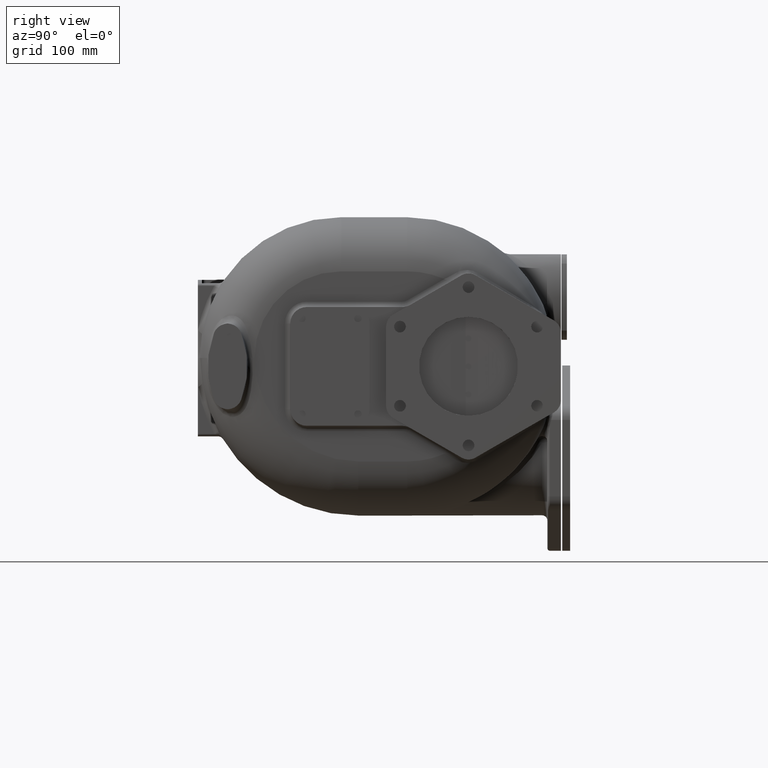
[diagram: clean part render]
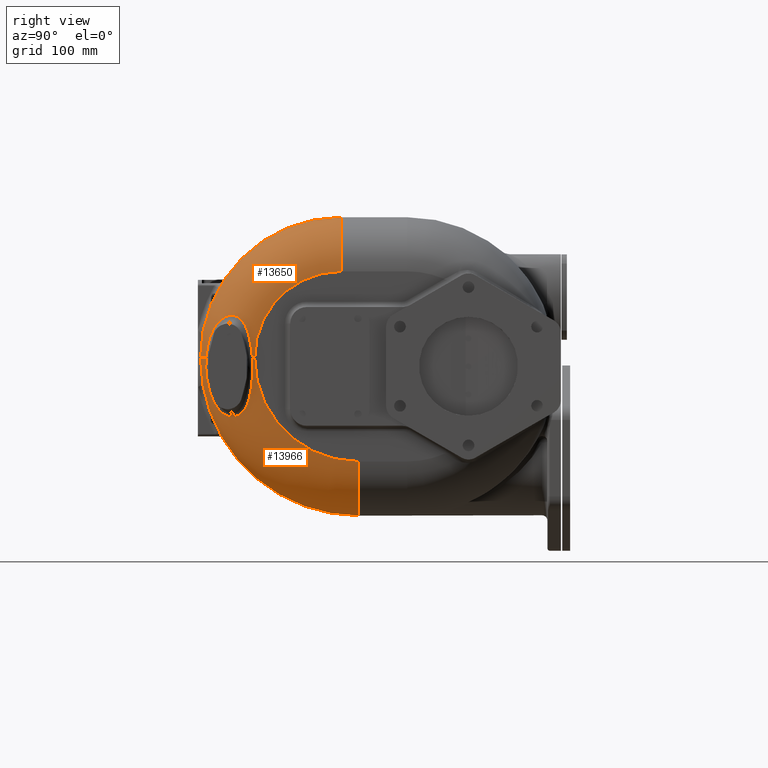
[diagram: same view with one multi-face feature highlighted, each face labeled with its STEP entity id]
A machine part, right view. The highlighted faces form ONE feature: a constant-radius fillet chain: 2 tangent blend faces with common blend radius 82 mm. The faces share edges in the B-rep.
Their STEP definitions:
[1] entity #13650 (Torus):
#963=CARTESIAN_POINT('',(2.34E2,2.17E2,-1.3E1));
#964=DIRECTION('',(1.E0,0.E0,0.E0));
#965=DIRECTION('',(0.E0,0.E0,1.E0));
#966=AXIS2_PLACEMENT_3D('',#963,#964,#965);
#4882=CARTESIAN_POINT('',(2.339353656889E2,8.274487336276E1,-1.3E1));
#4883=CARTESIAN_POINT('',(2.339339644732E2,8.270918535156E1,-1.256129048278E1));
#4884=CARTESIAN_POINT('',(2.339307538358E2,8.263444731143E1,-1.168397406638E1));
#4885=CARTESIAN_POINT('',(2.339248748706E2,8.251323932024E1,-1.036713794622E1));
#4886=CARTESIAN_POINT('',(2.339178202315E2,8.238424142135E1,-9.050543589567E0));
#4887=CARTESIAN_POINT('',(2.339095936351E2,8.224952458407E1,-7.739844715712E0));
#4888=CARTESIAN_POINT('',(2.339000121001E2,8.210820254393E1,-6.417769285520E0));
#4889=CARTESIAN_POINT('',(2.338883148047E2,8.195227867606E1,-5.020393056383E0));
#4890=CARTESIAN_POINT('',(2.338734936988E2,8.177392797552E1,-3.494495743191E0));
#4891=CARTESIAN_POINT('',(2.338538358736E2,8.156191228367E1,-1.775377750045E0));
#4892=CARTESIAN_POINT('',(2.338289329511E2,8.132280882452E1,5.324368321622E-2));
#4893=CARTESIAN_POINT('',(2.337992401276E2,8.106855703263E1,1.887313419874E0));
#4894=CARTESIAN_POINT('',(2.337656302920E2,8.080967314629E1,3.653805296860E0));
#4895=CARTESIAN_POINT('',(2.337275543737E2,8.054340450761E1,5.375866464324E0));
#4896=CARTESIAN_POINT('',(2.336844166229E2,8.026789856882E1,7.066487727343E0));
#4897=CARTESIAN_POINT('',(2.336357899395E2,7.998270951425E1,8.728028116095E0));
#4898=CARTESIAN_POINT('',(2.335815502860E2,7.968902893449E1,1.035333559501E1));
#4899=CARTESIAN_POINT('',(2.335216481662E2,7.938801502104E1,1.193744209344E1));
#4900=CARTESIAN_POINT('',(2.334559376270E2,7.907993084541E1,1.347967238423E1));
#4901=CARTESIAN_POINT('',(2.333843044380E2,7.876507160544E1,1.497973951607E1));
#4902=CARTESIAN_POINT('',(2.333066912429E2,7.844383220158E1,1.643721364817E1));
#4903=CARTESIAN_POINT('',(2.332230771701E2,7.811651043918E1,1.785149341278E1));
#4904=CARTESIAN_POINT('',(2.331335127621E2,7.778360178184E1,1.922202328566E1));
#4905=CARTESIAN_POINT('',(2.330380774816E2,7.744552878494E1,2.054856448182E1));
#4906=CARTESIAN_POINT('',(2.329368645141E2,7.710259193413E1,2.183111608475E1));
#4907=CARTESIAN_POINT('',(2.328300472482E2,7.675533797245E1,2.306963781450E1));
#4908=CARTESIAN_POINT('',(2.327177076246E2,7.640385501058E1,2.426530876193E1));
#4909=CARTESIAN_POINT('',(2.325999193408E2,7.604816075520E1,2.541938724040E1));
#4910=CARTESIAN_POINT('',(2.324767596776E2,7.568833425724E1,2.653342457296E1));
#4911=CARTESIAN_POINT('',(2.323481518404E2,7.532400015638E1,2.761015024374E1));
#4912=CARTESIAN_POINT('',(2.322139510086E2,7.495464611099E1,2.865237911781E1));
#4913=CARTESIAN_POINT('',(2.320740892132E2,7.458006964310E1,2.966207516733E1));
#4914=CARTESIAN_POINT('',(2.319286400776E2,7.420042738371E1,3.063998031404E1));
#4915=CARTESIAN_POINT('',(2.317776356035E2,7.381577752907E1,3.158720374411E1));
#4916=CARTESIAN_POINT('',(2.316211979662E2,7.342641366714E1,3.250432554186E1));
#4917=CARTESIAN_POINT('',(2.314594500652E2,7.303251104768E1,3.339169495827E1));
#4918=CARTESIAN_POINT('',(2.312925490605E2,7.263438612798E1,3.424979410977E1));
#4919=CARTESIAN_POINT('',(2.311205674178E2,7.223213280471E1,3.507955722668E1));
#4920=CARTESIAN_POINT('',(2.309435207764E2,7.182564430214E1,3.588189817660E1));
#4921=CARTESIAN_POINT('',(2.307614536523E2,7.141498320171E1,3.665779853056E1));
#4922=CARTESIAN_POINT('',(2.305744059701E2,7.100014094816E1,3.740801023703E1));
#4923=CARTESIAN_POINT('',(2.303823834907E2,7.058101870809E1,3.813329278474E1));
#4924=CARTESIAN_POINT('',(2.301854128517E2,7.015765656594E1,3.883450025605E1));
#4925=CARTESIAN_POINT('',(2.299834664731E2,6.972990349414E1,3.951237462571E1));
#4926=CARTESIAN_POINT('',(2.297764929224E2,6.929758768996E1,4.016768800060E1));
#4927=CARTESIAN_POINT('',(2.295644542256E2,6.886062572936E1,4.080121378226E1));
#4928=CARTESIAN_POINT('',(2.293472636159E2,6.841877867717E1,4.141360068403E1));
#4929=CARTESIAN_POINT('',(2.291248160681E2,6.797182142857E1,4.200554421702E1));
#4930=CARTESIAN_POINT('',(2.288970437834E2,6.751962679026E1,4.257758137256E1));
#4931=CARTESIAN_POINT('',(2.286638501019E2,6.706198749251E1,4.313016548819E1));
#4932=CARTESIAN_POINT('',(2.284250912509E2,6.659864058606E1,4.366384501044E1));
#4933=CARTESIAN_POINT('',(2.281805225759E2,6.612914416089E1,4.417929049786E1));
#4934=CARTESIAN_POINT('',(2.279297836645E2,6.565284767876E1,4.467722306659E1));
#4935=CARTESIAN_POINT('',(2.276728614600E2,6.516978432006E1,4.515756570396E1));
#4936=CARTESIAN_POINT('',(2.274100852436E2,6.468063576325E1,4.561971974209E1));
#4937=CARTESIAN_POINT('',(2.271417263251E2,6.418592589584E1,4.606325385210E1));
#4938=CARTESIAN_POINT('',(2.268682170688E2,6.368646818606E1,4.648762737945E1));
#4939=CARTESIAN_POINT('',(2.265900742769E2,6.318321790210E1,4.689238022163E1));
#4940=CARTESIAN_POINT('',(2.263077047150E2,6.267685632582E1,4.727725715181E1));
#4941=CARTESIAN_POINT('',(2.260209648776E2,6.216711793744E1,4.764290213848E1));
#4942=CARTESIAN_POINT('',(2.257297265756E2,6.165376263078E1,4.798979667899E1));
#4943=CARTESIAN_POINT('',(2.254338632679E2,6.113653951493E1,4.831828588991E1));
#4944=CARTESIAN_POINT('',(2.251332982868E2,6.061534301880E1,4.862872200350E1));
#4945=CARTESIAN_POINT('',(2.248279083304E2,6.008995198208E1,4.892134581685E1));
#4946=CARTESIAN_POINT('',(2.245175844838E2,5.956019122943E1,4.919635925460E1));
#4947=CARTESIAN_POINT('',(2.242022110069E2,5.902590062920E1,4.945397058890E1));
#4948=CARTESIAN_POINT('',(2.238816515772E2,5.848685258882E1,4.969425165832E1));
#4949=CARTESIAN_POINT('',(2.235558123510E2,5.794293871916E1,4.99172995E1));
#4950=CARTESIAN_POINT('',(2.232245895577E2,5.739401697714E1,5.012312469782E1));
#4951=CARTESIAN_POINT('',(2.228878748252E2,5.683993559182E1,5.031168277857E1));
#4952=CARTESIAN_POINT('',(2.225455628529E2,5.628058327930E1,5.048296771954E1));
#4953=CARTESIAN_POINT('',(2.221975363779E2,5.571579241819E1,5.063683661134E1));
#4954=CARTESIAN_POINT('',(2.218437344921E2,5.514552692718E1,5.077317893754E1));
#4955=CARTESIAN_POINT('',(2.214841588766E2,5.456984548299E1,5.089182398781E1));
#4956=CARTESIAN_POINT('',(2.211188166099E2,5.398877929814E1,5.099250061878E1));
#4957=CARTESIAN_POINT('',(2.207477099993E2,5.340240239487E1,5.107505531257E1));
#4958=CARTESIAN_POINT('',(2.204964858468E2,5.300800675888E1,5.111785080806E1));
#4959=CARTESIAN_POINT('',(2.203699161142E2,5.280994129624E1,5.113614340283E1));
#4961=CARTESIAN_POINT('',(2.203699161142E2,5.280994129624E1,5.113614340283E1));
#4962=CARTESIAN_POINT('',(2.202355517051E2,5.259968005971E1,5.115556259065E1));
#4963=CARTESIAN_POINT('',(2.199644954461E2,5.217714172881E1,5.118797655465E1));
#4964=CARTESIAN_POINT('',(2.195508804671E2,5.153731362659E1,5.121695989171E1));
#4965=CARTESIAN_POINT('',(2.191302842757E2,5.089161747689E1,5.122596117740E1));
#4966=CARTESIAN_POINT('',(2.187027447084E2,5.024019457364E1,5.121462866742E1));
#4967=CARTESIAN_POINT('',(2.182683175963E2,4.958319534821E1,5.118257060104E1));
#4968=CARTESIAN_POINT('',(2.178270752906E2,4.892078522302E1,5.112937018453E1));
#4969=CARTESIAN_POINT('',(2.173791715685E2,4.825325607924E1,5.105464352236E1));
#4970=CARTESIAN_POINT('',(2.169248260340E2,4.758097498180E1,5.095799038534E1));
#4971=CARTESIAN_POINT('',(2.164642743613E2,4.690432853518E1,5.083904665784E1));
#4972=CARTESIAN_POINT('',(2.159977076950E2,4.622361675230E1,5.069741657564E1));
#4973=CARTESIAN_POINT('',(2.155253400082E2,4.553916222422E1,5.053270803912E1));
#4974=CARTESIAN_POINT('',(2.150474041747E2,4.485130835182E1,5.034454790076E1));
#4975=CARTESIAN_POINT('',(2.145641463825E2,4.416039643838E1,5.013254082303E1));
#4976=CARTESIAN_POINT('',(2.140758391789E2,4.346680435508E1,4.989633194563E1));
#4977=CARTESIAN_POINT('',(2.135827540378E2,4.277088650493E1,4.963553908855E1));
#4978=CARTESIAN_POINT('',(2.130851614447E2,4.207298571753E1,4.934977864852E1));
#4979=CARTESIAN_POINT('',(2.125833594714E2,4.137348053038E1,4.903870257456E1));
#4980=CARTESIAN_POINT('',(2.120776264426E2,4.067269569151E1,4.870190339820E1));
#4981=CARTESIAN_POINT('',(2.115682485114E2,3.997097348886E1,4.833901633601E1));
#4982=CARTESIAN_POINT('',(2.110555319002E2,3.926866514178E1,4.794965848575E1));
#4983=CARTESIAN_POINT('',(2.105397446443E2,3.856605775487E1,4.753339813580E1));
#4984=CARTESIAN_POINT('',(2.100211791531E2,3.786348251660E1,4.708986181020E1));
#4985=CARTESIAN_POINT('',(2.095001244037E2,3.716123454785E1,4.661858934816E1));
#4986=CARTESIAN_POINT('',(2.089768261650E2,3.645956512023E1,4.611912046568E1));
#4987=CARTESIAN_POINT('',(2.084515717114E2,3.575877841253E1,4.559101802805E1));
#4988=CARTESIAN_POINT('',(2.079246178956E2,3.505911240452E1,4.503372717564E1));
#4989=CARTESIAN_POINT('',(2.073961977937E2,3.436080897712E1,4.444675373900E1));
#4990=CARTESIAN_POINT('',(2.068665961006E2,3.366414721521E1,4.382954065505E1));
#4991=CARTESIAN_POINT('',(2.063360213508E2,3.296931637218E1,4.318144414518E1));
#4992=CARTESIAN_POINT('',(2.058047027587E2,3.227656122988E1,4.250189044186E1));
#4993=CARTESIAN_POINT('',(2.052728940477E2,3.158611582031E1,4.179015341074E1));
#4994=CARTESIAN_POINT('',(2.047407573903E2,3.089814434724E1,4.104548587728E1));
#4995=CARTESIAN_POINT('',(2.042085208540E2,3.021289865126E1,4.026716732901E1));
#4996=CARTESIAN_POINT('',(2.036763940355E2,2.953058091944E1,3.945428812079E1));
#4997=CARTESIAN_POINT('',(2.031445256708E2,2.885138762914E1,3.860600305143E1));
#4998=CARTESIAN_POINT('',(2.026131611364E2,2.817560414608E1,3.772139740813E1));
#4999=CARTESIAN_POINT('',(2.020824644044E2,2.750343857116E1,3.679940892309E1));
#5000=CARTESIAN_POINT('',(2.015526038285E2,2.683516378554E1,3.583906911427E1));
#5001=CARTESIAN_POINT('',(2.010238282915E2,2.617110833592E1,3.483924698788E1));
#5002=CARTESIAN_POINT('',(2.004962870865E2,2.551155164353E1,3.379876717935E1));
#5003=CARTESIAN_POINT('',(1.999701917820E2,2.485688017004E1,3.271651960623E1));
#5004=CARTESIAN_POINT('',(1.994457916515E2,2.420750162905E1,3.159118991135E1));
#5005=CARTESIAN_POINT('',(1.989232518480E2,2.356382868891E1,3.042153932221E1));
#5006=CARTESIAN_POINT('',(1.984028472202E2,2.292639702719E1,2.920630234250E1));
#5007=CARTESIAN_POINT('',(1.978848334432E2,2.229575222162E1,2.794408981621E1));
#5008=CARTESIAN_POINT('',(1.973694225780E2,2.167249351980E1,2.663363988729E1));
#5009=CARTESIAN_POINT('',(1.968569616203E2,2.105735104079E1,2.527360680169E1));
#5010=CARTESIAN_POINT('',(1.963477426195E2,2.045108144680E1,2.386267689546E1));
#5011=CARTESIAN_POINT('',(1.958420414435E2,1.985451091179E1,2.239963560414E1));
#5012=CARTESIAN_POINT('',(1.953403086964E2,1.926863760247E1,2.088326811754E1));
#5013=CARTESIAN_POINT('',(1.948428729198E2,1.869446400472E1,1.931250183827E1));
#5014=CARTESIAN_POINT('',(1.943501258600E2,1.813310645740E1,1.768634615939E1));
#5015=CARTESIAN_POINT('',(1.938626439778E2,1.758588809763E1,1.600407376614E1));
#5016=CARTESIAN_POINT('',(1.933807928541E2,1.705406625130E1,1.426505908699E1));
#5017=CARTESIAN_POINT('',(1.929051663265E2,1.653912214458E1,1.246896454102E1));
#5018=CARTESIAN_POINT('',(1.924364460983E2,1.604267444894E1,1.061591930933E1));
#5019=CARTESIAN_POINT('',(1.919750507736E2,1.556621331966E1,8.706057921342E0));
#5020=CARTESIAN_POINT('',(1.915218840986E2,1.511160630259E1,6.740329052153E0));
#5021=CARTESIAN_POINT('',(1.910776705650E2,1.468063171606E1,4.720072552911E0));
#5022=CARTESIAN_POINT('',(1.906430190465E2,1.427499525747E1,2.646786215604E0));
#5023=CARTESIAN_POINT('',(1.902191792420E2,1.389681565326E1,5.236263410972E-1));
#5024=CARTESIAN_POINT('',(1.898068135713E2,1.354777004749E1,-1.646410742775E0));
#5025=CARTESIAN_POINT('',(1.894071186577E2,1.322978380528E1,-3.858886386441E0));
#5026=CARTESIAN_POINT('',(1.890217867045E2,1.294492226024E1,-6.107075375706E0));
#5027=CARTESIAN_POINT('',(1.886516205833E2,1.269449480305E1,-8.384185335522E0));
#5028=CARTESIAN_POINT('',(1.882980102670E2,1.247983622596E1,-1.068410366528E1));
#5029=CARTESIAN_POINT('',(1.880743577142E2,1.236131586702E1,-1.222630023022E1));
#5030=CARTESIAN_POINT('',(1.879654239546E2,1.230815323413E1,-1.3E1));
#5032=CARTESIAN_POINT('',(1.52E2,2.17E2,1.18E2));
#5033=DIRECTION('',(0.E0,-1.E0,0.E0));
#5034=DIRECTION('',(1.E0,0.E0,0.E0));
#5035=AXIS2_PLACEMENT_3D('',#5032,#5033,#5034);
#5047=CARTESIAN_POINT('',(1.879654239546E2,1.230815323413E1,-1.3E1));
#5218=CARTESIAN_POINT('',(2.339353656889E2,8.274487336276E1,-1.3E1));
#5220=CARTESIAN_POINT('',(1.52E2,8.6E1,-1.3E1));
#5221=DIRECTION('',(0.E0,0.E0,-1.E0));
#5222=DIRECTION('',(1.E0,0.E0,0.E0));
#5223=AXIS2_PLACEMENT_3D('',#5220,#5221,#5222);
#5225=CARTESIAN_POINT('',(1.52E2,8.6E1,-1.3E1));
#5226=DIRECTION('',(0.E0,0.E0,-1.E0));
#5227=DIRECTION('',(4.386027311538E-1,-8.986810581204E-1,0.E0));
#5228=AXIS2_PLACEMENT_3D('',#5225,#5226,#5227);
#6370=CARTESIAN_POINT('',(1.52E2,2.17E2,-1.3E1));
#6371=DIRECTION('',(1.E0,0.E0,0.E0));
#6372=DIRECTION('',(0.E0,0.E0,1.E0));
#6373=AXIS2_PLACEMENT_3D('',#6370,#6371,#6372);
#7756=CARTESIAN_POINT('',(1.52E2,2.170000000004E2,2.E2));
#7758=VERTEX_POINT('',#7756);
#7813=CARTESIAN_POINT('',(2.34E2,8.6E1,-1.3E1));
#7814=VERTEX_POINT('',#7813);
#7815=CARTESIAN_POINT('',(1.52E2,4.E0,-1.3E1));
#7816=VERTEX_POINT('',#7815);
#7817=CARTESIAN_POINT('',(2.34E2,2.17E2,1.18E2));
#7818=VERTEX_POINT('',#7817);
#7821=VERTEX_POINT('',#5047);
#7824=VERTEX_POINT('',#5218);
#7826=VERTEX_POINT('',#4959);
#13631=CARTESIAN_POINT('',(1.52E2,2.17E2,-1.3E1));
#13632=DIRECTION('',(-1.E0,0.E0,0.E0));
#13633=DIRECTION('',(0.E0,7.929630381461E-3,9.999685599868E-1));
#13634=AXIS2_PLACEMENT_3D('',#13631,#13632,#13633);
#13635=TOROIDAL_SURFACE('',#13634,1.31E2,8.2E1);
#13637=ORIENTED_EDGE('',*,*,#13636,.T.);
#13639=ORIENTED_EDGE('',*,*,#13638,.T.);
#13641=ORIENTED_EDGE('',*,*,#13640,.T.);
#13643=ORIENTED_EDGE('',*,*,#13642,.F.);
#13644=ORIENTED_EDGE('',*,*,#13624,.F.);
#13645=ORIENTED_EDGE('',*,*,#9534,.T.);
#13647=ORIENTED_EDGE('',*,*,#13646,.T.);
#13648=EDGE_LOOP('',(#13637,#13639,#13641,#13643,#13644,#13645,#13647));
#13649=FACE_OUTER_BOUND('',#13648,.F.);
#13650=ADVANCED_FACE('',(#13649),#13635,.T.);
#967=CIRCLE('',#966,1.31E2);
#4960=B_SPLINE_CURVE_WITH_KNOTS('',3,(#4882,#4883,#4884,#4885,#4886,#4887,#4888,
#4889,#4890,#4891,#4892,#4893,#4894,#4895,#4896,#4897,#4898,#4899,#4900,#4901,
#4902,#4903,#4904,#4905,#4906,#4907,#4908,#4909,#4910,#4911,#4912,#4913,#4914,
#4915,#4916,#4917,#4918,#4919,#4920,#4921,#4922,#4923,#4924,#4925,#4926,#4927,
#4928,#4929,#4930,#4931,#4932,#4933,#4934,#4935,#4936,#4937,#4938,#4939,#4940,
#4941,#4942,#4943,#4944,#4945,#4946,#4947,#4948,#4949,#4950,#4951,#4952,#4953,
#4954,#4955,#4956,#4957,#4958,#4959),.UNSPECIFIED.,.F.,.F.,(4,1,1,1,1,1,1,1,1,1,
1,1,1,1,1,1,1,1,1,1,1,1,1,1,1,1,1,1,1,1,1,1,1,1,1,1,1,1,1,1,1,1,1,1,1,1,1,1,1,1,
1,1,1,1,1,1,1,1,1,1,1,1,1,1,1,1,1,1,1,1,1,1,1,1,1,4),(0.E0,1.333333333333E-2,
2.666666666667E-2,4.E-2,5.333333333333E-2,6.666666666667E-2,8.E-2,
9.333333333333E-2,1.066666666667E-1,1.2E-1,1.333333333333E-1,1.466666666667E-1,
1.6E-1,1.733333333333E-1,1.866666666667E-1,2.E-1,2.133333333333E-1,
2.266666666667E-1,2.4E-1,2.533333333333E-1,2.666666666667E-1,2.8E-1,
2.933333333333E-1,3.066666666667E-1,3.2E-1,3.333333333333E-1,3.466666666667E-1,
3.6E-1,3.733333333333E-1,3.866666666667E-1,4.E-1,4.133333333333E-1,
4.266666666667E-1,4.4E-1,4.533333333333E-1,4.666666666667E-1,4.8E-1,
4.933333333333E-1,5.066666666667E-1,5.2E-1,5.333333333333E-1,5.466666666667E-1,
5.6E-1,5.733333333333E-1,5.866666666667E-1,6.E-1,6.133333333333E-1,
6.266666666667E-1,6.4E-1,6.533333333333E-1,6.666666666667E-1,6.8E-1,
6.933333333333E-1,7.066666666667E-1,7.2E-1,7.333333333333E-1,7.466666666667E-1,
7.6E-1,7.733333333333E-1,7.866666666667E-1,8.E-1,8.133333333333E-1,
8.266666666667E-1,8.4E-1,8.533333333333E-1,8.666666666667E-1,8.8E-1,
8.933333333333E-1,9.066666666667E-1,9.2E-1,9.333333333333E-1,9.466666666667E-1,
9.6E-1,9.733333333333E-1,9.866666666667E-1,1.E0),.UNSPECIFIED.);
#5031=B_SPLINE_CURVE_WITH_KNOTS('',3,(#4961,#4962,#4963,#4964,#4965,#4966,#4967,
#4968,#4969,#4970,#4971,#4972,#4973,#4974,#4975,#4976,#4977,#4978,#4979,#4980,
#4981,#4982,#4983,#4984,#4985,#4986,#4987,#4988,#4989,#4990,#4991,#4992,#4993,
#4994,#4995,#4996,#4997,#4998,#4999,#5000,#5001,#5002,#5003,#5004,#5005,#5006,
#5007,#5008,#5009,#5010,#5011,#5012,#5013,#5014,#5015,#5016,#5017,#5018,#5019,
#5020,#5021,#5022,#5023,#5024,#5025,#5026,#5027,#5028,#5029,#5030),
.UNSPECIFIED.,.F.,.F.,(4,1,1,1,1,1,1,1,1,1,1,1,1,1,1,1,1,1,1,1,1,1,1,1,1,1,1,1,
1,1,1,1,1,1,1,1,1,1,1,1,1,1,1,1,1,1,1,1,1,1,1,1,1,1,1,1,1,1,1,1,1,1,1,1,1,1,1,
4),(0.E0,1.492537313433E-2,2.985074626866E-2,4.477611940299E-2,
5.970149253731E-2,7.462686567164E-2,8.955223880597E-2,1.044776119403E-1,
1.194029850746E-1,1.343283582090E-1,1.492537313433E-1,1.641791044776E-1,
1.791044776119E-1,1.940298507463E-1,2.089552238806E-1,2.238805970149E-1,
2.388059701493E-1,2.537313432836E-1,2.686567164179E-1,2.835820895522E-1,
2.985074626866E-1,3.134328358209E-1,3.283582089552E-1,3.432835820896E-1,
3.582089552239E-1,3.731343283582E-1,3.880597014925E-1,4.029850746269E-1,
4.179104477612E-1,4.328358208955E-1,4.477611940299E-1,4.626865671642E-1,
4.776119402985E-1,4.925373134328E-1,5.074626865672E-1,5.223880597015E-1,
5.373134328358E-1,5.522388059701E-1,5.671641791045E-1,5.820895522388E-1,
5.970149253731E-1,6.119402985075E-1,6.268656716418E-1,6.417910447761E-1,
6.567164179104E-1,6.716417910448E-1,6.865671641791E-1,7.014925373134E-1,
7.164179104478E-1,7.313432835821E-1,7.462686567164E-1,7.611940298507E-1,
7.761194029851E-1,7.910447761194E-1,8.059701492537E-1,8.208955223881E-1,
8.358208955224E-1,8.507462686567E-1,8.656716417910E-1,8.805970149254E-1,
8.955223880597E-1,9.104477611940E-1,9.253731343284E-1,9.402985074627E-1,
9.552238805970E-1,9.701492537313E-1,9.850746268657E-1,1.E0),.UNSPECIFIED.);
#5036=CIRCLE('',#5035,8.2E1);
#5224=CIRCLE('',#5223,8.2E1);
#5229=CIRCLE('',#5228,8.2E1);
#6374=CIRCLE('',#6373,2.13E2);
#9534=EDGE_CURVE('',#7818,#7814,#967,.T.);
#13624=EDGE_CURVE('',#7818,#7758,#5036,.T.);
#13636=EDGE_CURVE('',#7824,#7826,#4960,.T.);
#13638=EDGE_CURVE('',#7826,#7821,#5031,.T.);
#13640=EDGE_CURVE('',#7821,#7816,#5229,.T.);
#13642=EDGE_CURVE('',#7758,#7816,#6374,.T.);
#13646=EDGE_CURVE('',#7814,#7824,#5224,.T.);
[2] entity #13966 (Torus):
#958=CARTESIAN_POINT('',(2.34E2,2.43E2,-1.3E1));
#959=DIRECTION('',(1.E0,0.E0,0.E0));
#960=DIRECTION('',(0.E0,-1.E0,0.E0));
#961=AXIS2_PLACEMENT_3D('',#958,#959,#960);
#5047=CARTESIAN_POINT('',(1.879654239546E2,1.230815323413E1,-1.3E1));
#5048=CARTESIAN_POINT('',(1.878597585176E2,1.225661739816E1,-1.376026139655E1));
#5049=CARTESIAN_POINT('',(1.876545075377E2,1.216445605205E1,-1.529365468113E1));
#5050=CARTESIAN_POINT('',(1.873644305637E2,1.206021145663E1,-1.763844126785E1));
#5051=CARTESIAN_POINT('',(1.870946353069E2,1.199151920316E1,-2.000795915639E1));
#5052=CARTESIAN_POINT('',(1.868476390603E2,1.195950947066E1,-2.238924805052E1));
#5053=CARTESIAN_POINT('',(1.866261787234E2,1.196481531273E1,-2.476795072151E1));
#5054=CARTESIAN_POINT('',(1.864304068121E2,1.200620604473E1,-2.712859249586E1));
#5055=CARTESIAN_POINT('',(1.862606852467E2,1.208243736793E1,-2.946257015232E1));
#5056=CARTESIAN_POINT('',(1.861179847224E2,1.219270973709E1,-3.176662612475E1));
#5057=CARTESIAN_POINT('',(1.860030004942E2,1.233585356926E1,-3.403581585273E1));
#5058=CARTESIAN_POINT('',(1.859140995412E2,1.251020644171E1,-3.627229463211E1));
#5059=CARTESIAN_POINT('',(1.858508492987E2,1.271497327613E1,-3.847958321223E1));
#5060=CARTESIAN_POINT('',(1.858140097635E2,1.294990102673E1,-4.065945579635E1));
#5061=CARTESIAN_POINT('',(1.858036471050E2,1.321338656094E1,-4.280483932065E1));
#5062=CARTESIAN_POINT('',(1.858193349035E2,1.350340534314E1,-4.490898406715E1));
#5063=CARTESIAN_POINT('',(1.858602276142E2,1.381798083486E1,-4.696811214862E1));
#5064=CARTESIAN_POINT('',(1.859257219766E2,1.415579176392E1,-4.898239632569E1));
#5065=CARTESIAN_POINT('',(1.860156626992E2,1.451565976184E1,-5.095122830451E1));
#5066=CARTESIAN_POINT('',(1.861294548987E2,1.489631618372E1,-5.287448945332E1));
#5067=CARTESIAN_POINT('',(1.862663673200E2,1.529649603582E1,-5.475217975887E1));
#5068=CARTESIAN_POINT('',(1.864258386185E2,1.571505983844E1,-5.658430911266E1));
#5069=CARTESIAN_POINT('',(1.866070983612E2,1.615078314963E1,-5.837074012507E1));
#5070=CARTESIAN_POINT('',(1.868094743284E2,1.660252123434E1,-6.011134169477E1));
#5071=CARTESIAN_POINT('',(1.870323306568E2,1.706929118191E1,-6.180650401040E1));
#5072=CARTESIAN_POINT('',(1.872749644562E2,1.755023081781E1,-6.345708833395E1));
#5073=CARTESIAN_POINT('',(1.875367340674E2,1.804455879828E1,-6.506392207577E1));
#5074=CARTESIAN_POINT('',(1.878169921634E2,1.855148627307E1,-6.662758782149E1));
#5075=CARTESIAN_POINT('',(1.881150473804E2,1.907027267473E1,-6.814877954289E1));
#5076=CARTESIAN_POINT('',(1.884302620969E2,1.960026472696E1,-6.962825701787E1));
#5077=CARTESIAN_POINT('',(1.887620625203E2,2.014090757351E1,-7.106686328600E1));
#5078=CARTESIAN_POINT('',(1.891097841148E2,2.069166002071E1,-7.246550120923E1));
#5079=CARTESIAN_POINT('',(1.894729005287E2,2.125204077906E1,-7.382487416988E1));
#5080=CARTESIAN_POINT('',(1.898508006554E2,2.182160480083E1,-7.514584364394E1));
#5081=CARTESIAN_POINT('',(1.902429174931E2,2.239993006809E1,-7.642913956962E1));
#5082=CARTESIAN_POINT('',(1.906487657760E2,2.298668212880E1,-7.767552398689E1));
#5083=CARTESIAN_POINT('',(1.910677309314E2,2.358149082989E1,-7.888576985654E1));
#5084=CARTESIAN_POINT('',(1.914993887899E2,2.418407400324E1,-8.006049016546E1));
#5085=CARTESIAN_POINT('',(1.919431589135E2,2.479413239588E1,-8.120044158352E1));
#5086=CARTESIAN_POINT('',(1.923985819351E2,2.541139638984E1,-8.230617130400E1));
#5087=CARTESIAN_POINT('',(1.928651857984E2,2.603564341109E1,-8.337832324793E1));
#5088=CARTESIAN_POINT('',(1.933424336183E2,2.666660367838E1,-8.441744942416E1));
#5089=CARTESIAN_POINT('',(1.938299299948E2,2.730409112773E1,-8.542403707852E1));
#5090=CARTESIAN_POINT('',(1.943271213579E2,2.794786142266E1,-8.639863773790E1));
#5091=CARTESIAN_POINT('',(1.948335981261E2,2.859771554665E1,-8.734162710397E1));
#5092=CARTESIAN_POINT('',(1.953488656957E2,2.925345138207E1,-8.825348756290E1));
#5093=CARTESIAN_POINT('',(1.958724358894E2,2.991483319014E1,-8.913456287121E1));
#5094=CARTESIAN_POINT('',(1.964038807066E2,3.058167722996E1,-8.998520288461E1));
#5095=CARTESIAN_POINT('',(1.969426614428E2,3.125373265E1,-9.080575660705E1));
#5096=CARTESIAN_POINT('',(1.974883329299E2,3.193077794390E1,-9.159646458358E1));
#5097=CARTESIAN_POINT('',(1.980403872834E2,3.261257719266E1,-9.235763417658E1));
#5098=CARTESIAN_POINT('',(1.985983022457E2,3.329884725413E1,-9.308947245096E1));
#5099=CARTESIAN_POINT('',(1.991615999645E2,3.398934045332E1,-9.379219562082E1));
#5100=CARTESIAN_POINT('',(1.997297269668E2,3.468374915328E1,-9.446601459163E1));
#5101=CARTESIAN_POINT('',(2.003021514860E2,3.538175278354E1,-9.511108032380E1));
#5102=CARTESIAN_POINT('',(2.008783483699E2,3.608304335041E1,-9.572757770097E1));
#5103=CARTESIAN_POINT('',(2.014577339299E2,3.678723927880E1,-9.631564482181E1));
#5104=CARTESIAN_POINT('',(2.020397495650E2,3.749396914457E1,-9.687542552239E1));
#5105=CARTESIAN_POINT('',(2.026238254747E2,3.820284364194E1,-9.740707225209E1));
#5106=CARTESIAN_POINT('',(2.032093543361E2,3.891341207285E1,-9.791070315365E1));
#5107=CARTESIAN_POINT('',(2.037957504804E2,3.962524187092E1,-9.838647956135E1));
#5108=CARTESIAN_POINT('',(2.043824146731E2,4.033786315133E1,-9.883454646342E1));
#5109=CARTESIAN_POINT('',(2.049687380954E2,4.105077935082E1,-9.925505753493E1));
#5110=CARTESIAN_POINT('',(2.055541282094E2,4.176350713256E1,-9.964821632690E1));
#5111=CARTESIAN_POINT('',(2.061379865001E2,4.247552087592E1,-1.000141961098E2));
#5112=CARTESIAN_POINT('',(2.067197219131E2,4.318629601595E1,-1.003532162417E2));
#5113=CARTESIAN_POINT('',(2.072987562516E2,4.389531072899E1,-1.006655341026E2));
#5114=CARTESIAN_POINT('',(2.078745255877E2,4.460201882071E1,-1.009513812227E2));
#5115=CARTESIAN_POINT('',(2.084464810763E2,4.530589430924E1,-1.012110631288E2));
#5116=CARTESIAN_POINT('',(2.090140817589E2,4.600639470948E1,-1.014448930689E2));
#5117=CARTESIAN_POINT('',(2.095768072804E2,4.670296339661E1,-1.016531692826E2));
#5118=CARTESIAN_POINT('',(2.101341456767E2,4.739506297327E1,-1.018362787570E2));
#5119=CARTESIAN_POINT('',(2.106856613051E2,4.808220869340E1,-1.019946026871E2));
#5120=CARTESIAN_POINT('',(2.112309655292E2,4.876395251416E1,-1.021285401084E2));
#5121=CARTESIAN_POINT('',(2.117696682497E2,4.943985266433E1,-1.022385559754E2));
#5122=CARTESIAN_POINT('',(2.123012995434E2,5.010931049475E1,-1.023250352877E2));
#5123=CARTESIAN_POINT('',(2.128253942962E2,5.077173213461E1,-1.023884375036E2));
#5124=CARTESIAN_POINT('',(2.133416343999E2,5.142669996781E1,-1.024292874170E2));
#5125=CARTESIAN_POINT('',(2.138499404879E2,5.207405802598E1,-1.024480691578E2));
#5126=CARTESIAN_POINT('',(2.143502245665E2,5.271365277607E1,-1.024452958924E2));
#5127=CARTESIAN_POINT('',(2.148424173206E2,5.334533145546E1,-1.024214373656E2));
#5128=CARTESIAN_POINT('',(2.151651013132E2,5.376105432859E1,-1.023917653848E2));
#5129=CARTESIAN_POINT('',(2.153250893624E2,5.396756334149E1,-1.023735623590E2));
#5131=CARTESIAN_POINT('',(2.153250893624E2,5.396756334149E1,-1.023735623590E2));
#5132=CARTESIAN_POINT('',(2.154899836456E2,5.418040577107E1,-1.023548023151E2));
#5133=CARTESIAN_POINT('',(2.158173160637E2,5.460393994297E1,-1.023104568547E2));
#5134=CARTESIAN_POINT('',(2.163009889630E2,5.523280714017E1,-1.022238021597E2));
#5135=CARTESIAN_POINT('',(2.167771769248E2,5.585499479317E1,-1.021173711962E2));
#5136=CARTESIAN_POINT('',(2.172458082840E2,5.647034308824E1,-1.019914701731E2));
#5137=CARTESIAN_POINT('',(2.177068077566E2,5.707870764996E1,-1.018464553569E2));
#5138=CARTESIAN_POINT('',(2.181601244219E2,5.767995337813E1,-1.016826382571E2));
#5139=CARTESIAN_POINT('',(2.186057497364E2,5.827398759758E1,-1.015002899824E2));
#5140=CARTESIAN_POINT('',(2.190437078957E2,5.886077970168E1,-1.012997017015E2));
#5141=CARTESIAN_POINT('',(2.194740341630E2,5.944028402911E1,-1.010810873818E2));
#5142=CARTESIAN_POINT('',(2.198967945698E2,6.001251377357E1,-1.008446679428E2));
#5143=CARTESIAN_POINT('',(2.203120671915E2,6.057749165574E1,-1.005906230280E2));
#5144=CARTESIAN_POINT('',(2.207199395642E2,6.113523566308E1,-1.003190676318E2));
#5145=CARTESIAN_POINT('',(2.211205359621E2,6.168584563445E1,-1.000301291839E2));
#5146=CARTESIAN_POINT('',(2.215139733948E2,6.222937803353E1,-9.972383517867E1));
#5147=CARTESIAN_POINT('',(2.219003883761E2,6.276593755420E1,-9.940020610468E1));
#5148=CARTESIAN_POINT('',(2.222799454369E2,6.329567739642E1,-9.905921212478E1));
#5149=CARTESIAN_POINT('',(2.226527805287E2,6.381867445913E1,-9.870072359684E1));
#5150=CARTESIAN_POINT('',(2.230190851027E2,6.433514156427E1,-9.832462601731E1));
#5151=CARTESIAN_POINT('',(2.233790512113E2,6.484525875869E1,-9.793066299441E1));
#5152=CARTESIAN_POINT('',(2.237328419402E2,6.534916460305E1,-9.751854098678E1));
#5153=CARTESIAN_POINT('',(2.240806816885E2,6.584714246527E1,-9.708793795281E1));
#5154=CARTESIAN_POINT('',(2.244227320725E2,6.633932028596E1,-9.663838298663E1));
#5155=CARTESIAN_POINT('',(2.247592085529E2,6.682596561095E1,-9.616937955102E1));
#5156=CARTESIAN_POINT('',(2.250904074492E2,6.730746623121E1,-9.568020605497E1));
#5157=CARTESIAN_POINT('',(2.254166207284E2,6.778416731442E1,-9.516990105178E1));
#5158=CARTESIAN_POINT('',(2.257375960429E2,6.825570676024E1,-9.463845340749E1));
#5159=CARTESIAN_POINT('',(2.260528520023E2,6.872131426564E1,-9.408619581409E1));
#5160=CARTESIAN_POINT('',(2.263620061022E2,6.918037541746E1,-9.351348313752E1));
#5161=CARTESIAN_POINT('',(2.266648551842E2,6.963257049421E1,-9.292051090356E1));
#5162=CARTESIAN_POINT('',(2.269610902824E2,7.007736793168E1,-9.230767447881E1));
#5163=CARTESIAN_POINT('',(2.272508924306E2,7.051501293925E1,-9.167451500146E1));
#5164=CARTESIAN_POINT('',(2.275347842702E2,7.094628740214E1,-9.101966517807E1));
#5165=CARTESIAN_POINT('',(2.278131155095E2,7.137170959636E1,-9.034184770471E1));
#5166=CARTESIAN_POINT('',(2.280861351565E2,7.179168839582E1,-8.963989203577E1));
#5167=CARTESIAN_POINT('',(2.283540249448E2,7.220657372835E1,-8.891268309266E1));
#5168=CARTESIAN_POINT('',(2.286169166128E2,7.261660022696E1,-8.815895960750E1));
#5169=CARTESIAN_POINT('',(2.288750000802E2,7.302216570366E1,-8.737723015598E1));
#5170=CARTESIAN_POINT('',(2.291283936022E2,7.342360672551E1,-8.656606639165E1));
#5171=CARTESIAN_POINT('',(2.293771399198E2,7.382106711349E1,-8.572387374002E1));
#5172=CARTESIAN_POINT('',(2.296212875312E2,7.421483324874E1,-8.484910190834E1));
#5173=CARTESIAN_POINT('',(2.298608145837E2,7.460508419942E1,-8.394020360814E1));
#5174=CARTESIAN_POINT('',(2.300956111675E2,7.499178551561E1,-8.299558248560E1));
#5175=CARTESIAN_POINT('',(2.303255867086E2,7.537511004844E1,-8.201377825820E1));
#5176=CARTESIAN_POINT('',(2.305505584153E2,7.575499153184E1,-8.099330284107E1));
#5177=CARTESIAN_POINT('',(2.307702516810E2,7.613120566338E1,-7.993296953035E1));
#5178=CARTESIAN_POINT('',(2.309844371310E2,7.650374012153E1,-7.883163819618E1));
#5179=CARTESIAN_POINT('',(2.311927644989E2,7.687222009584E1,-7.768836085371E1));
#5180=CARTESIAN_POINT('',(2.313948387807E2,7.723622985746E1,-7.650269266219E1));
#5181=CARTESIAN_POINT('',(2.315903341032E2,7.759552913875E1,-7.527411403923E1));
#5182=CARTESIAN_POINT('',(2.317788014900E2,7.794945438335E1,-7.400265191709E1));
#5183=CARTESIAN_POINT('',(2.319598381832E2,7.829746257077E1,-7.268869332418E1));
#5184=CARTESIAN_POINT('',(2.321331043111E2,7.863907587551E1,-7.133260462306E1));
#5185=CARTESIAN_POINT('',(2.322982023492E2,7.897348723786E1,-6.993537698802E1));
#5186=CARTESIAN_POINT('',(2.324548460285E2,7.930011326864E1,-6.849808961521E1));
#5187=CARTESIAN_POINT('',(2.326027968110E2,7.961831031594E1,-6.702194152845E1));
#5188=CARTESIAN_POINT('',(2.327418500297E2,7.992731035411E1,-6.550845050881E1));
#5189=CARTESIAN_POINT('',(2.328719119350E2,8.022654345732E1,-6.395915130090E1));
#5190=CARTESIAN_POINT('',(2.329929405008E2,8.051533786103E1,-6.237564952816E1));
#5191=CARTESIAN_POINT('',(2.331049687289E2,8.079304686821E1,-6.075960792185E1));
#5192=CARTESIAN_POINT('',(2.332081143490E2,8.105914907924E1,-5.911272822183E1));
#5193=CARTESIAN_POINT('',(2.333025477994E2,8.131303179684E1,-5.743664692734E1));
#5194=CARTESIAN_POINT('',(2.333885100904E2,8.155417810150E1,-5.573302127279E1));
#5195=CARTESIAN_POINT('',(2.334662984915E2,8.178211521693E1,-5.400350990638E1));
#5196=CARTESIAN_POINT('',(2.335362516936E2,8.199631926993E1,-5.224971011349E1));
#5197=CARTESIAN_POINT('',(2.335987585481E2,8.219637726094E1,-5.047324209373E1));
#5198=CARTESIAN_POINT('',(2.336542364935E2,8.238185305201E1,-4.867572403003E1));
#5199=CARTESIAN_POINT('',(2.337031290474E2,8.255231865710E1,-4.685877439398E1));
#5200=CARTESIAN_POINT('',(2.337459044195E2,8.270743396138E1,-4.502401247256E1));
#5201=CARTESIAN_POINT('',(2.337830341371E2,8.284679885867E1,-4.317317117340E1));
#5202=CARTESIAN_POINT('',(2.338149994094E2,8.297008673353E1,-4.130797228240E1));
#5203=CARTESIAN_POINT('',(2.338422779801E2,8.307699894137E1,-3.943017779548E1));
#5204=CARTESIAN_POINT('',(2.338653338458E2,8.316721179099E1,-3.754163743334E1));
#5205=CARTESIAN_POINT('',(2.338846186590E2,8.324049889165E1,-3.564413520690E1));
#5206=CARTESIAN_POINT('',(2.339005533830E2,8.329659635014E1,-3.373980922601E1));
#5207=CARTESIAN_POINT('',(2.339135304241E2,8.333529157143E1,-3.183089059620E1));
#5208=CARTESIAN_POINT('',(2.339239082246E2,8.335644122611E1,-2.991951053065E1));
#5209=CARTESIAN_POINT('',(2.339320012380E2,8.335987756700E1,-2.800762062478E1));
#5210=CARTESIAN_POINT('',(2.339380795205E2,8.334552870926E1,-2.609702002695E1));
#5211=CARTESIAN_POINT('',(2.339423570814E2,8.331330581053E1,-2.419045237287E1));
#5212=CARTESIAN_POINT('',(2.339449959997E2,8.326317684529E1,-2.229114249285E1));
#5213=CARTESIAN_POINT('',(2.339461088295E2,8.319523392481E1,-2.040212507343E1));
#5214=CARTESIAN_POINT('',(2.339457535325E2,8.310958125441E1,-1.852573741721E1));
#5215=CARTESIAN_POINT('',(2.339439415077E2,8.300653699555E1,-1.666443984311E1));
#5216=CARTESIAN_POINT('',(2.339406133606E2,8.288602469471E1,-1.482025804982E1));
#5217=CARTESIAN_POINT('',(2.339373177416E2,8.279393070265E1,-1.360472970057E1));
#5218=CARTESIAN_POINT('',(2.339353656889E2,8.274487336276E1,-1.3E1));
#5220=CARTESIAN_POINT('',(1.52E2,8.6E1,-1.3E1));
#5221=DIRECTION('',(0.E0,0.E0,-1.E0));
#5222=DIRECTION('',(1.E0,0.E0,0.E0));
#5223=AXIS2_PLACEMENT_3D('',#5220,#5221,#5222);
#5225=CARTESIAN_POINT('',(1.52E2,8.6E1,-1.3E1));
#5226=DIRECTION('',(0.E0,0.E0,-1.E0));
#5227=DIRECTION('',(4.386027311538E-1,-8.986810581204E-1,0.E0));
#5228=AXIS2_PLACEMENT_3D('',#5225,#5226,#5227);
#5957=CARTESIAN_POINT('',(1.52E2,2.43E2,-1.7E2));
#5958=DIRECTION('',(0.E0,1.E0,0.E0));
#5959=DIRECTION('',(1.E0,0.E0,0.E0));
#5960=AXIS2_PLACEMENT_3D('',#5957,#5958,#5959);
#5967=CARTESIAN_POINT('',(1.52E2,2.43E2,-1.3E1));
#5968=DIRECTION('',(1.E0,0.E0,0.E0));
#5969=DIRECTION('',(0.E0,-1.E0,0.E0));
#5970=AXIS2_PLACEMENT_3D('',#5967,#5968,#5969);
#7716=CARTESIAN_POINT('',(1.52E2,2.430000000001E2,-2.52E2));
#7718=VERTEX_POINT('',#7716);
#7807=CARTESIAN_POINT('',(2.34E2,2.43E2,-1.7E2));
#7809=VERTEX_POINT('',#7807);
#7813=CARTESIAN_POINT('',(2.34E2,8.6E1,-1.3E1));
#7814=VERTEX_POINT('',#7813);
#7815=CARTESIAN_POINT('',(1.52E2,4.E0,-1.3E1));
#7816=VERTEX_POINT('',#7815);
#7821=VERTEX_POINT('',#5047);
#7822=VERTEX_POINT('',#5129);
#7824=VERTEX_POINT('',#5218);
#13949=CARTESIAN_POINT('',(1.52E2,2.43E2,-1.3E1));
#13950=DIRECTION('',(-1.E0,0.E0,0.E0));
#13951=DIRECTION('',(0.E0,-9.999750283871E-1,7.067008004339E-3));
#13952=AXIS2_PLACEMENT_3D('',#13949,#13950,#13951);
#13953=TOROIDAL_SURFACE('',#13952,1.57E2,8.2E1);
#13955=ORIENTED_EDGE('',*,*,#13954,.T.);
#13956=ORIENTED_EDGE('',*,*,#13939,.T.);
#13957=ORIENTED_EDGE('',*,*,#13646,.F.);
#13958=ORIENTED_EDGE('',*,*,#9532,.T.);
#13960=ORIENTED_EDGE('',*,*,#13959,.T.);
#13962=ORIENTED_EDGE('',*,*,#13961,.F.);
#13963=ORIENTED_EDGE('',*,*,#13640,.F.);
#13964=EDGE_LOOP('',(#13955,#13956,#13957,#13958,#13960,#13962,#13963));
#13965=FACE_OUTER_BOUND('',#13964,.F.);
#13966=ADVANCED_FACE('',(#13965),#13953,.T.);
#962=CIRCLE('',#961,1.57E2);
#5130=B_SPLINE_CURVE_WITH_KNOTS('',3,(#5047,#5048,#5049,#5050,#5051,#5052,#5053,
#5054,#5055,#5056,#5057,#5058,#5059,#5060,#5061,#5062,#5063,#5064,#5065,#5066,
#5067,#5068,#5069,#5070,#5071,#5072,#5073,#5074,#5075,#5076,#5077,#5078,#5079,
#5080,#5081,#5082,#5083,#5084,#5085,#5086,#5087,#5088,#5089,#5090,#5091,#5092,
#5093,#5094,#5095,#5096,#5097,#5098,#5099,#5100,#5101,#5102,#5103,#5104,#5105,
#5106,#5107,#5108,#5109,#5110,#5111,#5112,#5113,#5114,#5115,#5116,#5117,#5118,
#5119,#5120,#5121,#5122,#5123,#5124,#5125,#5126,#5127,#5128,#5129),
.UNSPECIFIED.,.F.,.F.,(4,1,1,1,1,1,1,1,1,1,1,1,1,1,1,1,1,1,1,1,1,1,1,1,1,1,1,1,
1,1,1,1,1,1,1,1,1,1,1,1,1,1,1,1,1,1,1,1,1,1,1,1,1,1,1,1,1,1,1,1,1,1,1,1,1,1,1,1,
1,1,1,1,1,1,1,1,1,1,1,1,4),(0.E0,1.25E-2,2.5E-2,3.75E-2,5.E-2,6.25E-2,7.5E-2,
8.75E-2,1.E-1,1.125E-1,1.25E-1,1.375E-1,1.5E-1,1.625E-1,1.75E-1,1.875E-1,2.E-1,
2.125E-1,2.25E-1,2.375E-1,2.5E-1,2.625E-1,2.75E-1,2.875E-1,3.E-1,3.125E-1,
3.25E-1,3.375E-1,3.5E-1,3.625E-1,3.75E-1,3.875E-1,4.E-1,4.125E-1,4.25E-1,
4.375E-1,4.5E-1,4.625E-1,4.75E-1,4.875E-1,5.E-1,5.125E-1,5.25E-1,5.375E-1,
5.5E-1,5.625E-1,5.75E-1,5.875E-1,6.E-1,6.125E-1,6.25E-1,6.375E-1,6.5E-1,
6.625E-1,6.75E-1,6.875E-1,7.E-1,7.125E-1,7.25E-1,7.375E-1,7.5E-1,7.625E-1,
7.75E-1,7.875E-1,8.E-1,8.125E-1,8.25E-1,8.375E-1,8.5E-1,8.625E-1,8.75E-1,
8.875E-1,9.E-1,9.125E-1,9.25E-1,9.375E-1,9.5E-1,9.625E-1,9.75E-1,9.875E-1,1.E0),
.UNSPECIFIED.);
#5219=B_SPLINE_CURVE_WITH_KNOTS('',3,(#5131,#5132,#5133,#5134,#5135,#5136,#5137,
#5138,#5139,#5140,#5141,#5142,#5143,#5144,#5145,#5146,#5147,#5148,#5149,#5150,
#5151,#5152,#5153,#5154,#5155,#5156,#5157,#5158,#5159,#5160,#5161,#5162,#5163,
#5164,#5165,#5166,#5167,#5168,#5169,#5170,#5171,#5172,#5173,#5174,#5175,#5176,
#5177,#5178,#5179,#5180,#5181,#5182,#5183,#5184,#5185,#5186,#5187,#5188,#5189,
#5190,#5191,#5192,#5193,#5194,#5195,#5196,#5197,#5198,#5199,#5200,#5201,#5202,
#5203,#5204,#5205,#5206,#5207,#5208,#5209,#5210,#5211,#5212,#5213,#5214,#5215,
#5216,#5217,#5218),.UNSPECIFIED.,.F.,.F.,(4,1,1,1,1,1,1,1,1,1,1,1,1,1,1,1,1,1,1,
1,1,1,1,1,1,1,1,1,1,1,1,1,1,1,1,1,1,1,1,1,1,1,1,1,1,1,1,1,1,1,1,1,1,1,1,1,1,1,1,
1,1,1,1,1,1,1,1,1,1,1,1,1,1,1,1,1,1,1,1,1,1,1,1,1,1,4),(0.E0,1.176470588235E-2,
2.352941176471E-2,3.529411764706E-2,4.705882352941E-2,5.882352941176E-2,
7.058823529412E-2,8.235294117647E-2,9.411764705882E-2,1.058823529412E-1,
1.176470588235E-1,1.294117647059E-1,1.411764705882E-1,1.529411764706E-1,
1.647058823529E-1,1.764705882353E-1,1.882352941176E-1,2.E-1,2.117647058824E-1,
2.235294117647E-1,2.352941176471E-1,2.470588235294E-1,2.588235294118E-1,
2.705882352941E-1,2.823529411765E-1,2.941176470588E-1,3.058823529412E-1,
3.176470588235E-1,3.294117647059E-1,3.411764705882E-1,3.529411764706E-1,
3.647058823529E-1,3.764705882353E-1,3.882352941176E-1,4.E-1,4.117647058824E-1,
4.235294117647E-1,4.352941176471E-1,4.470588235294E-1,4.588235294118E-1,
4.705882352941E-1,4.823529411765E-1,4.941176470588E-1,5.058823529412E-1,
5.176470588235E-1,5.294117647059E-1,5.411764705882E-1,5.529411764706E-1,
5.647058823529E-1,5.764705882353E-1,5.882352941176E-1,6.E-1,6.117647058824E-1,
6.235294117647E-1,6.352941176471E-1,6.470588235294E-1,6.588235294118E-1,
6.705882352941E-1,6.823529411765E-1,6.941176470588E-1,7.058823529412E-1,
7.176470588235E-1,7.294117647059E-1,7.411764705882E-1,7.529411764706E-1,
7.647058823529E-1,7.764705882353E-1,7.882352941176E-1,8.E-1,8.117647058824E-1,
8.235294117647E-1,8.352941176471E-1,8.470588235294E-1,8.588235294118E-1,
8.705882352941E-1,8.823529411765E-1,8.941176470588E-1,9.058823529412E-1,
9.176470588235E-1,9.294117647059E-1,9.411764705882E-1,9.529411764706E-1,
9.647058823529E-1,9.764705882353E-1,9.882352941176E-1,1.E0),.UNSPECIFIED.);
#5224=CIRCLE('',#5223,8.2E1);
#5229=CIRCLE('',#5228,8.2E1);
#5961=CIRCLE('',#5960,8.2E1);
#5971=CIRCLE('',#5970,2.39E2);
#9532=EDGE_CURVE('',#7814,#7809,#962,.T.);
#13640=EDGE_CURVE('',#7821,#7816,#5229,.T.);
#13646=EDGE_CURVE('',#7814,#7824,#5224,.T.);
#13939=EDGE_CURVE('',#7822,#7824,#5219,.T.);
#13954=EDGE_CURVE('',#7821,#7822,#5130,.T.);
#13959=EDGE_CURVE('',#7809,#7718,#5961,.T.);
#13961=EDGE_CURVE('',#7816,#7718,#5971,.T.);